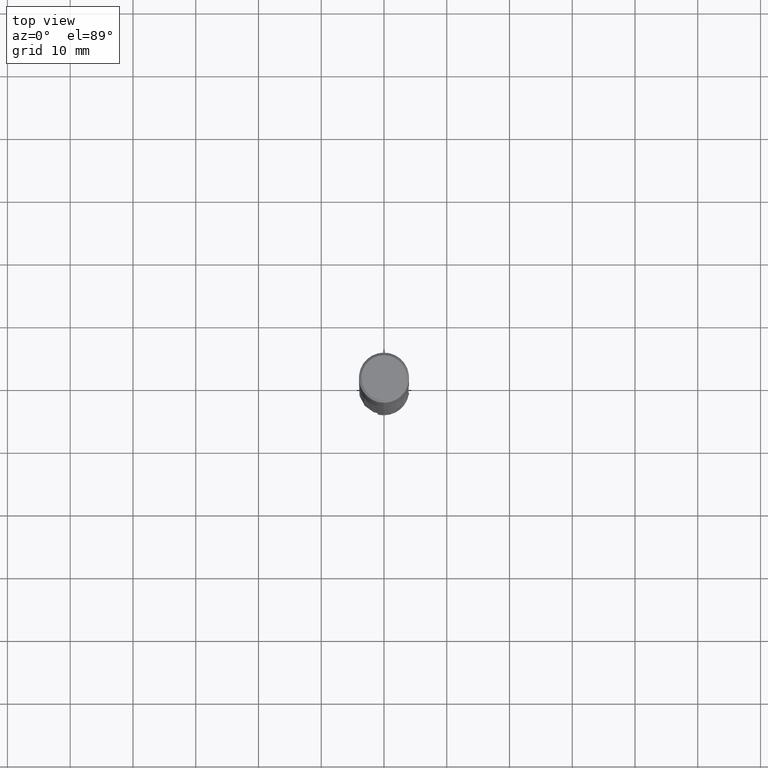
[diagram: clean part render]
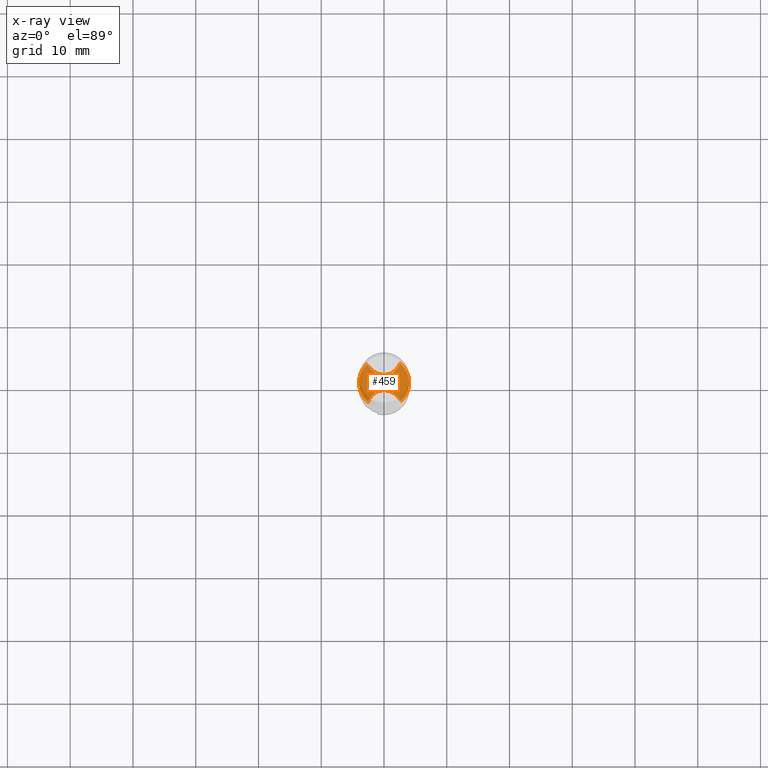
[diagram: x-ray — body ghosted, one internal face saturated and labeled with its STEP entity id]
A machine part, top view, then the same camera in x-ray: the body is ghosted and one INTERNAL B-rep face — a face not visible from any outside direction — is saturated and labeled: STEP entity #459.
In plain terms, the highlighted planar face has unit normal (-0, 0, 1).
Its self-contained STEP definition (entity closure, byte-faithful):
#371=EDGE_CURVE('',#477,#419,#882,.T.);
#381=EDGE_CURVE('',#601,#477,#894,.T.);
#419=VERTEX_POINT('',#935);
#421=VERTEX_POINT('',#937);
#453=VERTEX_POINT('',#970);
#459=ADVANCED_FACE('',(#976),#977,.T.);
#477=VERTEX_POINT('',#997);
#487=EDGE_CURVE('',#453,#615,#1008,.T.);
#491=EDGE_CURVE('',#615,#421,#1013,.T.);
#495=EDGE_CURVE('',#453,#419,#1017,.T.);
#601=VERTEX_POINT('',#1135);
#615=VERTEX_POINT('',#1149);
#705=EDGE_CURVE('',#601,#421,#1244,.T.);
#882=B_SPLINE_CURVE_WITH_KNOTS('',3,(#3502,#3503,#3504,#3505),.UNSPECIFIED.,.F.,.F.,(4,4),(0.0,2.91169518972753),.UNSPECIFIED.);
#894=B_SPLINE_CURVE_WITH_KNOTS('',3,(#3519,#3520,#3521,#3522,#3523,#3524,#3525,#3526,#3527,#3528,#3529,#3530,#3531,#3532,#3533,#3534),.UNSPECIFIED.,.F.,.F.,(4,2,2,2,2,2,2,4),(0.0,1.04165789794919,2.08314747285235,3.1246086549787,4.16616333554135,5.2078778908972,5.846355555201,6.48484866219461),.UNSPECIFIED.);
#935=CARTESIAN_POINT('',(-2.78155846727584,2.87439254506514,-46.048));
#937=CARTESIAN_POINT('',(2.78155846727584,-2.87439254506514,-46.048));
#970=CARTESIAN_POINT('',(-2.54645515789191,-3.08460145543078,-46.048));
#976=FACE_OUTER_BOUND('',#4614,.T.);
#977=PLANE('',#4615);
#997=CARTESIAN_POINT('',(-1.88874308545044,1.98138917355037,-46.048));
#1008=B_SPLINE_CURVE_WITH_KNOTS('',3,(#4993,#4994,#4995,#4996,#4997,#4998,#4999,#5000,#5001,#5002,#5003,#5004,#5005,#5006,#5007,#5008),.UNSPECIFIED.,.F.,.F.,(4,2,2,2,2,2,2,4),(0.0,1.04165789794913,2.08314747285221,3.12460865497851,4.16616333554113,5.20787789089691,5.84635555520068,6.48484866219428),.UNSPECIFIED.);
#1013=B_SPLINE_CURVE_WITH_KNOTS('',3,(#5014,#5015,#5016,#5017),.UNSPECIFIED.,.F.,.F.,(4,4),(0.0,2.91169518956745),.UNSPECIFIED.);
#1017=CIRCLE('',#5023,3.9999);
#1135=CARTESIAN_POINT('',(2.54645515789191,3.08460145543078,-46.048));
#1149=CARTESIAN_POINT('',(1.88874308545044,-1.98138917355037,-46.048));
#1244=CIRCLE('',#8395,3.9999);
#3502=CARTESIAN_POINT('',(-1.88874308552115,1.98138917347967,-46.048));
#3503=CARTESIAN_POINT('',(-2.57496769235123,2.66775083541005,-46.048));
#3504=CARTESIAN_POINT('',(-3.27007647459514,3.36301470928208,-46.048));
#3505=CARTESIAN_POINT('',(-3.95678498119755,4.0499,-46.048));
#3519=CARTESIAN_POINT('',(2.65721677034326,4.0499,-46.048));
#3520=CARTESIAN_POINT('',(2.68114839238163,3.70350640986822,-46.048));
#3521=CARTESIAN_POINT('',(2.63719463846778,3.3557531176846,-46.048));
#3522=CARTESIAN_POINT('',(2.41845840255351,2.69672466259913,-46.048));
#3523=CARTESIAN_POINT('',(2.24579003325575,2.39175037024487,-46.048));
#3524=CARTESIAN_POINT('',(1.79326858327589,1.8651612212981,-46.048));
#3525=CARTESIAN_POINT('',(1.51774862589801,1.64858308464702,-46.048));
#3526=CARTESIAN_POINT('',(0.899169943256258,1.33320506452581,-46.048));
#3527=CARTESIAN_POINT('',(0.562022979529908,1.2374326734106,-46.048));
#3528=CARTESIAN_POINT('',(-0.13006103395284,1.18049160827357,-46.048));
#3529=CARTESIAN_POINT('',(-0.47838222285185,1.2198878979722,-46.048));
#3530=CARTESIAN_POINT('',(-1.01220898968788,1.38930434000392,-46.048));
#3531=CARTESIAN_POINT('',(-1.20663155911519,1.47773397963428,-46.048));
#3532=CARTESIAN_POINT('',(-1.57031125485911,1.69891660421462,-46.048));
#3533=CARTESIAN_POINT('',(-1.7382647561286,1.8308781837525,-46.048));
#3534=CARTESIAN_POINT('',(-1.88874308545044,1.98138917355037,-46.048));
#4614=EDGE_LOOP('',(#8715,#8716,#8717,#8718,#8719,#8720));
#4615=AXIS2_PLACEMENT_3D('',#8721,#8722,#8723);
#4993=CARTESIAN_POINT('',(-2.65721677034325,-4.0499,-46.048));
#4994=CARTESIAN_POINT('',(-2.68114839238163,-3.70350640986824,-46.048));
#4995=CARTESIAN_POINT('',(-2.63719463846778,-3.35575311768461,-46.048));
#4996=CARTESIAN_POINT('',(-2.41845840255351,-2.69672466259912,-46.048));
#4997=CARTESIAN_POINT('',(-2.24579003325575,-2.39175037024486,-46.048));
#4998=CARTESIAN_POINT('',(-1.79326858327588,-1.86516122129809,-46.048));
#4999=CARTESIAN_POINT('',(-1.517748625898,-1.64858308464702,-46.048));
#5000=CARTESIAN_POINT('',(-0.899169943256259,-1.33320506452582,-46.048));
#5001=CARTESIAN_POINT('',(-0.562022979529917,-1.2374326734106,-46.048));
#5002=CARTESIAN_POINT('',(0.130061033952838,-1.18049160827357,-46.048));
#5003=CARTESIAN_POINT('',(0.478382222851849,-1.2198878979722,-46.048));
#5004=CARTESIAN_POINT('',(1.01220898968789,-1.38930434000392,-46.048));
#5005=CARTESIAN_POINT('',(1.20663155911519,-1.47773397963428,-46.048));
#5006=CARTESIAN_POINT('',(1.57031125485911,-1.69891660421462,-46.048));
#5007=CARTESIAN_POINT('',(1.7382647561286,-1.8308781837525,-46.048));
#5008=CARTESIAN_POINT('',(1.88874308545044,-1.98138917355037,-46.048));
#5014=CARTESIAN_POINT('',(1.88874308552115,-1.98138917347967,-46.048));
#5015=CARTESIAN_POINT('',(2.5749676923135,-2.66775083537232,-46.048));
#5016=CARTESIAN_POINT('',(3.27007647458457,-3.3630147092715,-46.048));
#5017=CARTESIAN_POINT('',(3.95678498119755,-4.0499,-46.048));
#5023=AXIS2_PLACEMENT_3D('',#8770,#8771,#8772);
#8395=AXIS2_PLACEMENT_3D('',#9022,#9023,#9024);
#8715=ORIENTED_EDGE('',*,*,#491,.T.);
#8716=ORIENTED_EDGE('',*,*,#705,.F.);
#8717=ORIENTED_EDGE('',*,*,#381,.T.);
#8718=ORIENTED_EDGE('',*,*,#371,.T.);
#8719=ORIENTED_EDGE('',*,*,#495,.F.);
#8720=ORIENTED_EDGE('',*,*,#487,.T.);
#8721=CARTESIAN_POINT('',(0.0,1.99995,-46.048));
#8722=DIRECTION('',(-0.0,0.0,1.0));
#8723=DIRECTION('',(0.0,-1.0,0.0));
#8770=CARTESIAN_POINT('',(0.0,0.0,-46.048));
#8771=DIRECTION('',(0.0,0.0,-1.0));
#8772=DIRECTION('',(0.0,1.0,0.0));
#9022=CARTESIAN_POINT('',(0.0,0.0,-46.048));
#9023=DIRECTION('',(0.0,0.0,-1.0));
#9024=DIRECTION('',(0.0,1.0,0.0));